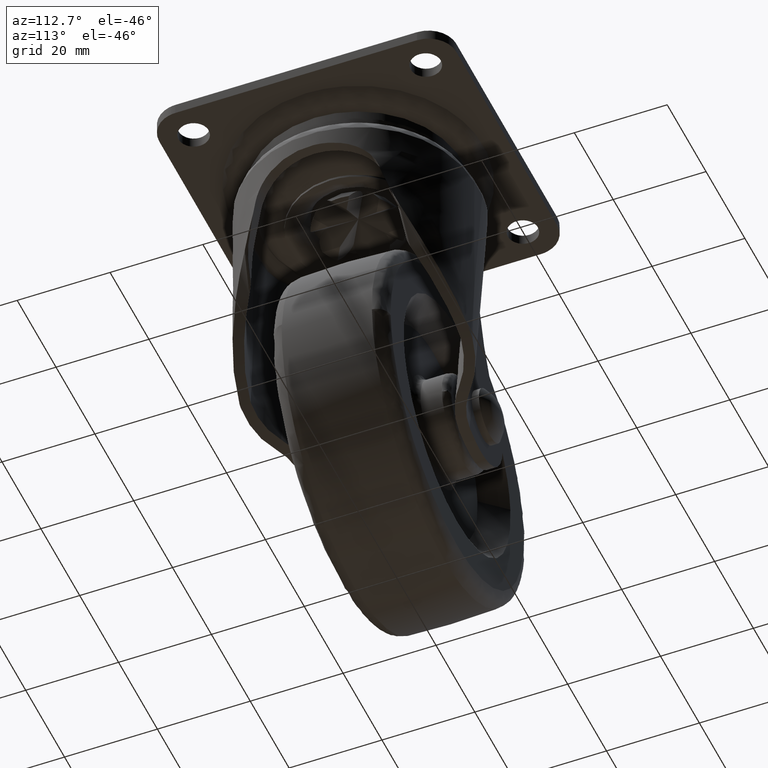
[diagram: clean part render]
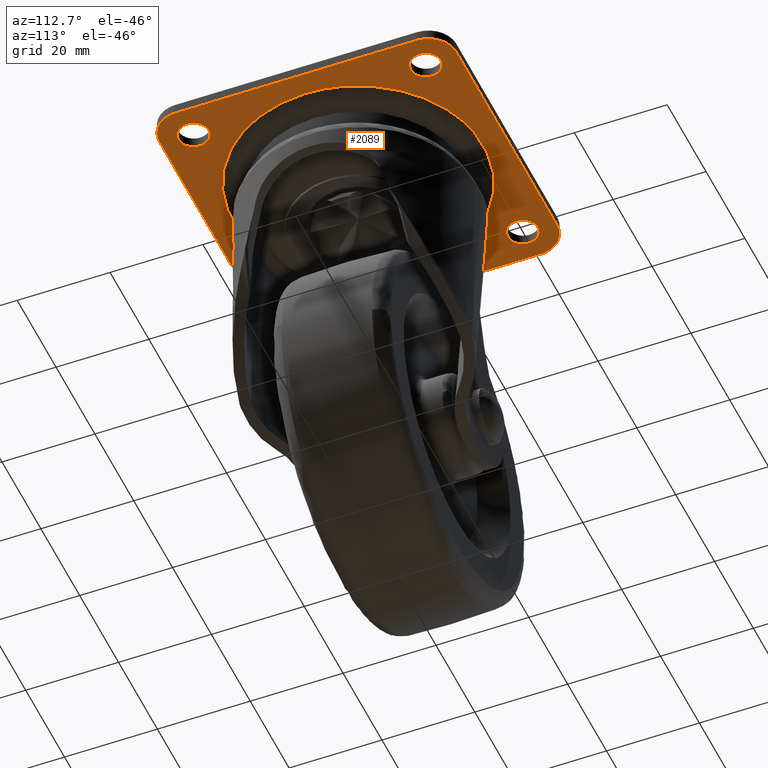
[diagram: same view with one face highlighted and labeled with its STEP entity id]
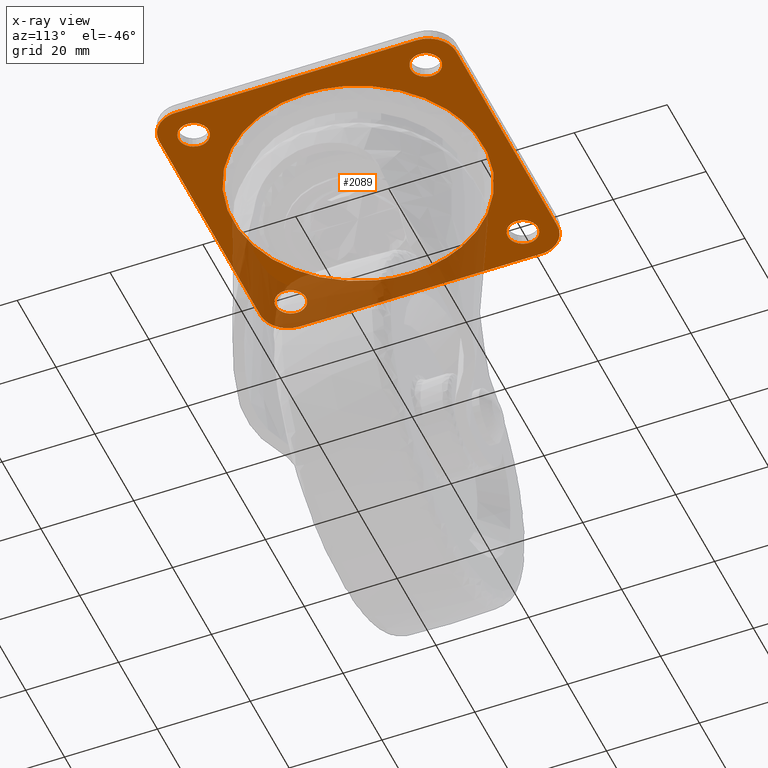
[diagram: x-ray of the same camera — body ghosted, the highlighted face saturated]
A machine part, auxiliary view. The second image highlights one B-rep face of the part: STEP entity #2089.
The next image is the same camera in x-ray: the body ghosted, the highlighted face saturated — about 28% of this face is hidden behind the body in this view.
In plain terms, the highlighted face is a freeform B-spline surface patch.
Its self-contained STEP definition (entity closure, byte-faithful):
#100=CARTESIAN_POINT('',(-24.801592246405111,28.243938094864550,-2.299999999999971));
#101=VERTEX_POINT('',#100);
#107=CARTESIAN_POINT('',(-21.750000000000000,25.0,-2.299999999999970));
#108=VERTEX_POINT('',#107);
#109=CARTESIAN_POINT('',(-21.750000000000000,25.0,-2.299999999999970));
#110=CARTESIAN_POINT('',(-21.750000000000000,28.057294717242190,-2.299999999999970));
#111=CARTESIAN_POINT('',(-24.801592246405107,28.243938094864546,-2.299999999999971));
#119=(BOUNDED_CURVE()B_SPLINE_CURVE(2,(#109,#110,#111),.UNSPECIFIED.,.F.,.U.)B_SPLINE_CURVE_WITH_KNOTS((3,3),(0.500000000000000,0.739332962230627),.UNSPECIFIED.)CURVE()GEOMETRIC_REPRESENTATION_ITEM()RATIONAL_B_SPLINE_CURVE((1.0,0.719603993296452,0.976072041648896))REPRESENTATION_ITEM(''));
#120=EDGE_CURVE('',#108,#101,#119,.T.);
#122=CARTESIAN_POINT('',(-25.383611262667021,21.772719039321959,-2.299999999999971));
#123=VERTEX_POINT('',#122);
#124=CARTESIAN_POINT('',(-25.383611262667021,21.772719039321952,-2.299999999999971));
#125=CARTESIAN_POINT('',(-25.192478388901616,21.750000000000000,-2.299999999999970));
#126=CARTESIAN_POINT('',(-25.0,21.750000000000000,-2.299999999999970));
#127=CARTESIAN_POINT('',(-21.750000000000004,21.750000000000004,-2.299999999999970));
#128=CARTESIAN_POINT('',(-21.750000000000000,25.0,-2.299999999999970));
#136=(BOUNDED_CURVE()B_SPLINE_CURVE(2,(#124,#125,#126,#127,#128),.UNSPECIFIED.,.F.,.U.)B_SPLINE_CURVE_WITH_KNOTS((3,2,3),(0.229562473512234,0.250000000000000,0.500000000000000),.UNSPECIFIED.)CURVE()GEOMETRIC_REPRESENTATION_ITEM()RATIONAL_B_SPLINE_CURVE((0.956026754181201,0.976055948329652,1.0,0.707106781186547,1.0))REPRESENTATION_ITEM(''));
#137=EDGE_CURVE('',#123,#108,#136,.T.);
#181=CARTESIAN_POINT('',(-28.250000000000000,25.0,-2.299999999999970));
#182=VERTEX_POINT('',#181);
#183=CARTESIAN_POINT('',(-28.250000000000000,25.0,-2.299999999999970));
#184=CARTESIAN_POINT('',(-28.249999999999996,22.113432790716729,-2.299999999999971));
#185=CARTESIAN_POINT('',(-25.383611262667028,21.772719039321959,-2.299999999999970));
#193=(BOUNDED_CURVE()B_SPLINE_CURVE(2,(#183,#184,#185),.UNSPECIFIED.,.F.,.U.)B_SPLINE_CURVE_WITH_KNOTS((3,3),(0.0,0.229562473512234),.UNSPECIFIED.)CURVE()GEOMETRIC_REPRESENTATION_ITEM()RATIONAL_B_SPLINE_CURVE((1.0,0.731050832856896,0.956026754181201))REPRESENTATION_ITEM(''));
#194=EDGE_CURVE('',#182,#123,#193,.T.);
#196=CARTESIAN_POINT('',(-24.801592246405114,28.243938094864550,-2.299999999999970));
#197=CARTESIAN_POINT('',(-24.900703519172673,28.250000000000004,-2.299999999999971));
#198=CARTESIAN_POINT('',(-25.0,28.250000000000000,-2.299999999999970));
#199=CARTESIAN_POINT('',(-28.250000000000004,28.250000000000004,-2.299999999999970));
#200=CARTESIAN_POINT('',(-28.250000000000000,25.0,-2.299999999999970));
#208=(BOUNDED_CURVE()B_SPLINE_CURVE(2,(#196,#197,#198,#199,#200),.UNSPECIFIED.,.F.,.U.)B_SPLINE_CURVE_WITH_KNOTS((3,2,3),(0.739332962230627,0.750000000000000,1.0),.UNSPECIFIED.)CURVE()GEOMETRIC_REPRESENTATION_ITEM()RATIONAL_B_SPLINE_CURVE((0.976072041648895,0.987502787890095,1.0,0.707106781186547,1.0))REPRESENTATION_ITEM(''));
#209=EDGE_CURVE('',#101,#182,#208,.T.);
#502=CARTESIAN_POINT('',(25.198407753594889,28.243938094864550,-2.299999999999971));
#503=VERTEX_POINT('',#502);
#509=CARTESIAN_POINT('',(28.250000000000000,25.0,-2.299999999999970));
#510=VERTEX_POINT('',#509);
#511=CARTESIAN_POINT('',(28.250000000000000,25.0,-2.299999999999970));
#512=CARTESIAN_POINT('',(28.249999999999996,28.057294717242190,-2.299999999999970));
#513=CARTESIAN_POINT('',(25.198407753594896,28.243938094864546,-2.299999999999971));
#521=(BOUNDED_CURVE()B_SPLINE_CURVE(2,(#511,#512,#513),.UNSPECIFIED.,.F.,.U.)B_SPLINE_CURVE_WITH_KNOTS((3,3),(0.500000000000000,0.739332962230627),.UNSPECIFIED.)CURVE()GEOMETRIC_REPRESENTATION_ITEM()RATIONAL_B_SPLINE_CURVE((1.0,0.719603993296452,0.976072041648896))REPRESENTATION_ITEM(''));
#522=EDGE_CURVE('',#510,#503,#521,.T.);
#524=CARTESIAN_POINT('',(24.616388737332969,21.772719039321959,-2.299999999999970));
#525=VERTEX_POINT('',#524);
#526=CARTESIAN_POINT('',(24.616388737332969,21.772719039321956,-2.299999999999969));
#527=CARTESIAN_POINT('',(24.807521611098384,21.750000000000007,-2.299999999999970));
#528=CARTESIAN_POINT('',(25.0,21.750000000000000,-2.299999999999970));
#529=CARTESIAN_POINT('',(28.250000000000004,21.750000000000004,-2.299999999999970));
#530=CARTESIAN_POINT('',(28.250000000000000,25.0,-2.299999999999970));
#538=(BOUNDED_CURVE()B_SPLINE_CURVE(2,(#526,#527,#528,#529,#530),.UNSPECIFIED.,.F.,.U.)B_SPLINE_CURVE_WITH_KNOTS((3,2,3),(0.229562473512233,0.250000000000000,0.500000000000000),.UNSPECIFIED.)CURVE()GEOMETRIC_REPRESENTATION_ITEM()RATIONAL_B_SPLINE_CURVE((0.956026754181200,0.976055948329651,1.0,0.707106781186547,1.0))REPRESENTATION_ITEM(''));
#539=EDGE_CURVE('',#525,#510,#538,.T.);
#583=CARTESIAN_POINT('',(21.750000000000000,25.0,-2.299999999999970));
#584=VERTEX_POINT('',#583);
#585=CARTESIAN_POINT('',(21.750000000000000,25.0,-2.299999999999970));
#586=CARTESIAN_POINT('',(21.750000000000007,22.113432790716722,-2.299999999999969));
#587=CARTESIAN_POINT('',(24.616388737332972,21.772719039321963,-2.299999999999970));
#595=(BOUNDED_CURVE()B_SPLINE_CURVE(2,(#585,#586,#587),.UNSPECIFIED.,.F.,.U.)B_SPLINE_CURVE_WITH_KNOTS((3,3),(0.0,0.229562473512233),.UNSPECIFIED.)CURVE()GEOMETRIC_REPRESENTATION_ITEM()RATIONAL_B_SPLINE_CURVE((1.0,0.731050832856896,0.956026754181200))REPRESENTATION_ITEM(''));
#596=EDGE_CURVE('',#584,#525,#595,.T.);
#598=CARTESIAN_POINT('',(25.198407753594896,28.243938094864546,-2.299999999999971));
#599=CARTESIAN_POINT('',(25.099296480827320,28.249999999999993,-2.299999999999970));
#600=CARTESIAN_POINT('',(25.0,28.250000000000000,-2.299999999999970));
#601=CARTESIAN_POINT('',(21.750000000000004,28.250000000000004,-2.299999999999970));
#602=CARTESIAN_POINT('',(21.750000000000000,25.0,-2.299999999999970));
#610=(BOUNDED_CURVE()B_SPLINE_CURVE(2,(#598,#599,#600,#601,#602),.UNSPECIFIED.,.F.,.U.)B_SPLINE_CURVE_WITH_KNOTS((3,2,3),(0.739332962230627,0.750000000000000,1.0),.UNSPECIFIED.)CURVE()GEOMETRIC_REPRESENTATION_ITEM()RATIONAL_B_SPLINE_CURVE((0.976072041648896,0.987502787890095,1.0,0.707106781186547,1.0))REPRESENTATION_ITEM(''));
#611=EDGE_CURVE('',#503,#584,#610,.T.);
#688=CARTESIAN_POINT('',(25.198407753594889,-21.756061905135450,-2.299999999999970));
#689=VERTEX_POINT('',#688);
#695=CARTESIAN_POINT('',(28.250000000000000,-25.0,-2.299999999999970));
#696=VERTEX_POINT('',#695);
#697=CARTESIAN_POINT('',(28.250000000000000,-25.0,-2.299999999999970));
#698=CARTESIAN_POINT('',(28.249999999999996,-21.942705282757821,-2.299999999999970));
#699=CARTESIAN_POINT('',(25.198407753594896,-21.756061905135454,-2.299999999999970));
#707=(BOUNDED_CURVE()B_SPLINE_CURVE(2,(#697,#698,#699),.UNSPECIFIED.,.F.,.U.)B_SPLINE_CURVE_WITH_KNOTS((3,3),(0.500000000000000,0.739332962230627),.UNSPECIFIED.)CURVE()GEOMETRIC_REPRESENTATION_ITEM()RATIONAL_B_SPLINE_CURVE((1.0,0.719603993296452,0.976072041648896))REPRESENTATION_ITEM(''));
#708=EDGE_CURVE('',#696,#689,#707,.T.);
#710=CARTESIAN_POINT('',(24.616388737332969,-28.227280960678041,-2.299999999999970));
#711=VERTEX_POINT('',#710);
#712=CARTESIAN_POINT('',(24.616388737332969,-28.227280960678044,-2.299999999999969));
#713=CARTESIAN_POINT('',(24.807521611098384,-28.250000000000004,-2.299999999999970));
#714=CARTESIAN_POINT('',(25.0,-28.250000000000000,-2.299999999999970));
#715=CARTESIAN_POINT('',(28.250000000000004,-28.250000000000004,-2.299999999999970));
#716=CARTESIAN_POINT('',(28.250000000000000,-25.0,-2.299999999999970));
#724=(BOUNDED_CURVE()B_SPLINE_CURVE(2,(#712,#713,#714,#715,#716),.UNSPECIFIED.,.F.,.U.)B_SPLINE_CURVE_WITH_KNOTS((3,2,3),(0.229562473512233,0.250000000000000,0.500000000000000),.UNSPECIFIED.)CURVE()GEOMETRIC_REPRESENTATION_ITEM()RATIONAL_B_SPLINE_CURVE((0.956026754181200,0.976055948329651,1.0,0.707106781186547,1.0))REPRESENTATION_ITEM(''));
#725=EDGE_CURVE('',#711,#696,#724,.T.);
#769=CARTESIAN_POINT('',(21.750000000000000,-25.0,-2.299999999999970));
#770=VERTEX_POINT('',#769);
#771=CARTESIAN_POINT('',(21.750000000000000,-25.0,-2.299999999999970));
#772=CARTESIAN_POINT('',(21.750000000000007,-27.886567209283271,-2.299999999999969));
#773=CARTESIAN_POINT('',(24.616388737332972,-28.227280960678051,-2.299999999999970));
#781=(BOUNDED_CURVE()B_SPLINE_CURVE(2,(#771,#772,#773),.UNSPECIFIED.,.F.,.U.)B_SPLINE_CURVE_WITH_KNOTS((3,3),(0.0,0.229562473512233),.UNSPECIFIED.)CURVE()GEOMETRIC_REPRESENTATION_ITEM()RATIONAL_B_SPLINE_CURVE((1.0,0.731050832856896,0.956026754181200))REPRESENTATION_ITEM(''));
#782=EDGE_CURVE('',#770,#711,#781,.T.);
#784=CARTESIAN_POINT('',(25.198407753594893,-21.756061905135457,-2.299999999999970));
#785=CARTESIAN_POINT('',(25.099296480827316,-21.750000000000000,-2.299999999999971));
#786=CARTESIAN_POINT('',(25.0,-21.750000000000000,-2.299999999999970));
#787=CARTESIAN_POINT('',(21.750000000000004,-21.750000000000004,-2.299999999999970));
#788=CARTESIAN_POINT('',(21.750000000000000,-25.0,-2.299999999999970));
#796=(BOUNDED_CURVE()B_SPLINE_CURVE(2,(#784,#785,#786,#787,#788),.UNSPECIFIED.,.F.,.U.)B_SPLINE_CURVE_WITH_KNOTS((3,2,3),(0.739332962230627,0.750000000000000,1.0),.UNSPECIFIED.)CURVE()GEOMETRIC_REPRESENTATION_ITEM()RATIONAL_B_SPLINE_CURVE((0.976072041648895,0.987502787890095,1.0,0.707106781186547,1.0))REPRESENTATION_ITEM(''));
#797=EDGE_CURVE('',#689,#770,#796,.T.);
#874=CARTESIAN_POINT('',(-24.801592246405111,-21.756061905135450,-2.299999999999971));
#875=VERTEX_POINT('',#874);
#881=CARTESIAN_POINT('',(-21.750000000000000,-25.0,-2.299999999999970));
#882=VERTEX_POINT('',#881);
#883=CARTESIAN_POINT('',(-21.750000000000000,-25.0,-2.299999999999970));
#884=CARTESIAN_POINT('',(-21.750000000000000,-21.942705282757821,-2.299999999999970));
#885=CARTESIAN_POINT('',(-24.801592246405107,-21.756061905135454,-2.299999999999971));
#893=(BOUNDED_CURVE()B_SPLINE_CURVE(2,(#883,#884,#885),.UNSPECIFIED.,.F.,.U.)B_SPLINE_CURVE_WITH_KNOTS((3,3),(0.500000000000000,0.739332962230627),.UNSPECIFIED.)CURVE()GEOMETRIC_REPRESENTATION_ITEM()RATIONAL_B_SPLINE_CURVE((1.0,0.719603993296452,0.976072041648896))REPRESENTATION_ITEM(''));
#894=EDGE_CURVE('',#882,#875,#893,.T.);
#896=CARTESIAN_POINT('',(-25.383611262667021,-28.227280960678041,-2.299999999999970));
#897=VERTEX_POINT('',#896);
#898=CARTESIAN_POINT('',(-25.383611262667028,-28.227280960678048,-2.299999999999970));
#899=CARTESIAN_POINT('',(-25.192478388901620,-28.250000000000007,-2.299999999999970));
#900=CARTESIAN_POINT('',(-25.0,-28.250000000000000,-2.299999999999970));
#901=CARTESIAN_POINT('',(-21.750000000000004,-28.250000000000004,-2.299999999999970));
#902=CARTESIAN_POINT('',(-21.750000000000000,-25.0,-2.299999999999970));
#910=(BOUNDED_CURVE()B_SPLINE_CURVE(2,(#898,#899,#900,#901,#902),.UNSPECIFIED.,.F.,.U.)B_SPLINE_CURVE_WITH_KNOTS((3,2,3),(0.229562473512234,0.250000000000000,0.500000000000000),.UNSPECIFIED.)CURVE()GEOMETRIC_REPRESENTATION_ITEM()RATIONAL_B_SPLINE_CURVE((0.956026754181201,0.976055948329652,1.0,0.707106781186547,1.0))REPRESENTATION_ITEM(''));
#911=EDGE_CURVE('',#897,#882,#910,.T.);
#955=CARTESIAN_POINT('',(-28.250000000000000,-25.0,-2.299999999999970));
#956=VERTEX_POINT('',#955);
#957=CARTESIAN_POINT('',(-28.250000000000000,-25.0,-2.299999999999970));
#958=CARTESIAN_POINT('',(-28.249999999999993,-27.886567209283278,-2.299999999999970));
#959=CARTESIAN_POINT('',(-25.383611262667024,-28.227280960678041,-2.299999999999970));
#967=(BOUNDED_CURVE()B_SPLINE_CURVE(2,(#957,#958,#959),.UNSPECIFIED.,.F.,.U.)B_SPLINE_CURVE_WITH_KNOTS((3,3),(0.0,0.229562473512234),.UNSPECIFIED.)CURVE()GEOMETRIC_REPRESENTATION_ITEM()RATIONAL_B_SPLINE_CURVE((1.0,0.731050832856896,0.956026754181201))REPRESENTATION_ITEM(''));
#968=EDGE_CURVE('',#956,#897,#967,.T.);
#970=CARTESIAN_POINT('',(-24.801592246405111,-21.756061905135454,-2.299999999999971));
#971=CARTESIAN_POINT('',(-24.900703519172684,-21.750000000000007,-2.299999999999971));
#972=CARTESIAN_POINT('',(-25.0,-21.750000000000000,-2.299999999999970));
#973=CARTESIAN_POINT('',(-28.250000000000004,-21.750000000000004,-2.299999999999970));
#974=CARTESIAN_POINT('',(-28.250000000000000,-25.0,-2.299999999999970));
#982=(BOUNDED_CURVE()B_SPLINE_CURVE(2,(#970,#971,#972,#973,#974),.UNSPECIFIED.,.F.,.U.)B_SPLINE_CURVE_WITH_KNOTS((3,2,3),(0.739332962230627,0.750000000000000,1.0),.UNSPECIFIED.)CURVE()GEOMETRIC_REPRESENTATION_ITEM()RATIONAL_B_SPLINE_CURVE((0.976072041648895,0.987502787890095,1.0,0.707106781186547,1.0))REPRESENTATION_ITEM(''));
#983=EDGE_CURVE('',#875,#956,#982,.T.);
#1622=CARTESIAN_POINT('',(12.106346834425370,24.133718452008630,-2.300000000131097));
#1623=VERTEX_POINT('',#1622);
#1637=CARTESIAN_POINT('',(27.0,0.0,-2.300000000000000));
#1638=VERTEX_POINT('',#1637);
#1639=CARTESIAN_POINT('',(12.106346834425377,24.133718452008630,-2.300000000131098));
#1640=CARTESIAN_POINT('',(27.000000000000004,16.662522862682831,-2.300000000000000));
#1641=CARTESIAN_POINT('',(27.0,0.0,-2.300000000000000));
#1649=(BOUNDED_CURVE()B_SPLINE_CURVE(2,(#1639,#1640,#1641),.UNSPECIFIED.,.F.,.U.)B_SPLINE_CURVE_WITH_KNOTS((3,3),(0.326230937884599,0.500000000000000),.UNSPECIFIED.)CURVE()GEOMETRIC_REPRESENTATION_ITEM()RATIONAL_B_SPLINE_CURVE((0.875845342762430,0.796416880267302,1.0))REPRESENTATION_ITEM(''));
#1650=EDGE_CURVE('',#1623,#1638,#1649,.T.);
#1652=CARTESIAN_POINT('',(-27.0,0.0,-2.300000000000000));
#1653=VERTEX_POINT('',#1652);
#1654=CARTESIAN_POINT('',(27.0,0.0,-2.300000000000000));
#1655=CARTESIAN_POINT('',(27.000000000000011,-27.000000000000011,-2.299999999999999));
#1656=CARTESIAN_POINT('',(0.0,-27.0,-2.300000000000000));
#1657=CARTESIAN_POINT('',(-27.000000000000011,-27.000000000000011,-2.299999999999999));
#1658=CARTESIAN_POINT('',(-27.0,0.0,-2.300000000000000));
#1666=(BOUNDED_CURVE()B_SPLINE_CURVE(2,(#1654,#1655,#1656,#1657,#1658),.UNSPECIFIED.,.F.,.U.)B_SPLINE_CURVE_WITH_KNOTS((3,2,3),(0.500000000000000,0.750000000000000,1.0),.UNSPECIFIED.)CURVE()GEOMETRIC_REPRESENTATION_ITEM()RATIONAL_B_SPLINE_CURVE((1.0,0.707106781186548,1.0,0.707106781186548,1.0))REPRESENTATION_ITEM(''));
#1667=EDGE_CURVE('',#1638,#1653,#1666,.T.);
#1669=CARTESIAN_POINT('',(-24.133718452008630,12.106346834425370,-2.300000000131098));
#1670=VERTEX_POINT('',#1669);
#1671=CARTESIAN_POINT('',(-27.0,0.0,-2.300000000000000));
#1672=CARTESIAN_POINT('',(-26.999999999999993,6.392481799216254,-2.300000000000000));
#1673=CARTESIAN_POINT('',(-24.133718452008630,12.106346834425377,-2.300000000131098));
#1681=(BOUNDED_CURVE()B_SPLINE_CURVE(2,(#1671,#1672,#1673),.UNSPECIFIED.,.F.,.U.)B_SPLINE_CURVE_WITH_KNOTS((3,3),(0.0,0.076230937884599),.UNSPECIFIED.)CURVE()GEOMETRIC_REPRESENTATION_ITEM()RATIONAL_B_SPLINE_CURVE((1.0,0.910689900919246,0.875845342762430))REPRESENTATION_ITEM(''));
#1682=EDGE_CURVE('',#1653,#1670,#1681,.T.);
#1765=CARTESIAN_POINT('',(-24.133718452008630,12.106346834425377,-2.300000000131098));
#1766=CARTESIAN_POINT('',(-16.662522862682831,27.000000000000004,-2.300000000000000));
#1767=CARTESIAN_POINT('',(0.0,27.0,-2.300000000000000));
#1768=CARTESIAN_POINT('',(6.392481799216270,27.0,-2.300000000000000));
#1769=CARTESIAN_POINT('',(12.106346834425370,24.133718452008623,-2.300000000131097));
#1777=(BOUNDED_CURVE()B_SPLINE_CURVE(2,(#1765,#1766,#1767,#1768,#1769),.UNSPECIFIED.,.F.,.U.)B_SPLINE_CURVE_WITH_KNOTS((3,2,3),(0.076230937884599,0.250000000000000,0.326230937884599),.UNSPECIFIED.)CURVE()GEOMETRIC_REPRESENTATION_ITEM()RATIONAL_B_SPLINE_CURVE((0.875845342762430,0.796416880267302,1.0,0.910689900919246,0.875845342762430))REPRESENTATION_ITEM(''));
#1778=EDGE_CURVE('',#1670,#1623,#1777,.T.);
#1964=CARTESIAN_POINT('',(-35.196799875955577,35.196799875955577,-2.300000000000000));
#1965=CARTESIAN_POINT('',(35.196801592569351,35.196799875955577,-2.300000000000000));
#1966=CARTESIAN_POINT('',(-35.196799875955577,-35.196801592569351,-2.300000000000000));
#1967=CARTESIAN_POINT('',(35.196801592569351,-35.196801592569351,-2.300000000000000));
#1968=B_SPLINE_SURFACE_WITH_KNOTS('',1,1,((#1964,#1966),(#1965,#1967)),.UNSPECIFIED.,.F.,.F.,.U.,(2,2),(2,2),(0.0,70.393601468524935),(0.0,70.393601468524935),.UNSPECIFIED.);
#1969=CARTESIAN_POINT('',(32.0,26.0,-2.299999999999970));
#1970=VERTEX_POINT('',#1969);
#1971=CARTESIAN_POINT('',(26.0,32.0,-2.299999999999970));
#1972=VERTEX_POINT('',#1971);
#1973=CARTESIAN_POINT('',(32.0,26.0,-2.299999999999970));
#1974=CARTESIAN_POINT('',(31.999999999999996,31.999999999999996,-2.299999999999970));
#1975=CARTESIAN_POINT('',(26.0,32.0,-2.299999999999970));
#1983=(BOUNDED_CURVE()B_SPLINE_CURVE(2,(#1973,#1974,#1975),.UNSPECIFIED.,.F.,.U.)CURVE()GEOMETRIC_REPRESENTATION_ITEM()QUASI_UNIFORM_CURVE()RATIONAL_B_SPLINE_CURVE((1.0,0.707106781186548,1.0))REPRESENTATION_ITEM(''));
#1984=EDGE_CURVE('',#1970,#1972,#1983,.T.);
#1985=ORIENTED_EDGE('',*,*,#1984,.F.);
#1986=CARTESIAN_POINT('',(32.0,-26.0,-2.299999999999970));
#1987=VERTEX_POINT('',#1986);
#1988=CARTESIAN_POINT('',(32.0,-26.0,-2.299999999999970));
#1989=CARTESIAN_POINT('',(32.0,26.0,-2.299999999999970));
#1990=QUASI_UNIFORM_CURVE('',1,(#1988,#1989),.UNSPECIFIED.,.F.,.U.);
#1991=EDGE_CURVE('',#1987,#1970,#1990,.T.);
#1992=ORIENTED_EDGE('',*,*,#1991,.F.);
#1993=CARTESIAN_POINT('',(26.0,-32.0,-2.299999999999970));
#1994=VERTEX_POINT('',#1993);
#1995=CARTESIAN_POINT('',(26.0,-32.0,-2.299999999999970));
#1996=CARTESIAN_POINT('',(31.999999999999996,-31.999999999999996,-2.299999999999970));
#1997=CARTESIAN_POINT('',(32.0,-26.0,-2.299999999999970));
#2005=(BOUNDED_CURVE()B_SPLINE_CURVE(2,(#1995,#1996,#1997),.UNSPECIFIED.,.F.,.U.)CURVE()GEOMETRIC_REPRESENTATION_ITEM()QUASI_UNIFORM_CURVE()RATIONAL_B_SPLINE_CURVE((1.0,0.707106781186548,1.0))REPRESENTATION_ITEM(''));
#2006=EDGE_CURVE('',#1994,#1987,#2005,.T.);
#2007=ORIENTED_EDGE('',*,*,#2006,.F.);
#2008=CARTESIAN_POINT('',(-26.0,-32.0,-2.299999999999970));
#2009=VERTEX_POINT('',#2008);
#2010=CARTESIAN_POINT('',(-26.0,-32.0,-2.299999999999970));
#2011=CARTESIAN_POINT('',(26.0,-32.0,-2.299999999999970));
#2012=QUASI_UNIFORM_CURVE('',1,(#2010,#2011),.UNSPECIFIED.,.F.,.U.);
#2013=EDGE_CURVE('',#2009,#1994,#2012,.T.);
#2014=ORIENTED_EDGE('',*,*,#2013,.F.);
#2015=CARTESIAN_POINT('',(-32.0,-26.0,-2.299999999999970));
#2016=VERTEX_POINT('',#2015);
#2017=CARTESIAN_POINT('',(-32.0,-26.0,-2.299999999999970));
#2018=CARTESIAN_POINT('',(-31.999999999999996,-31.999999999999996,-2.299999999999970));
#2019=CARTESIAN_POINT('',(-26.0,-32.0,-2.299999999999970));
#2027=(BOUNDED_CURVE()B_SPLINE_CURVE(2,(#2017,#2018,#2019),.UNSPECIFIED.,.F.,.U.)CURVE()GEOMETRIC_REPRESENTATION_ITEM()QUASI_UNIFORM_CURVE()RATIONAL_B_SPLINE_CURVE((1.0,0.707106781186548,1.0))REPRESENTATION_ITEM(''));
#2028=EDGE_CURVE('',#2016,#2009,#2027,.T.);
#2029=ORIENTED_EDGE('',*,*,#2028,.F.);
#2030=CARTESIAN_POINT('',(-32.0,26.0,-2.299999999999970));
#2031=VERTEX_POINT('',#2030);
#2032=CARTESIAN_POINT('',(-32.0,26.0,-2.299999999999970));
#2033=CARTESIAN_POINT('',(-32.0,-26.0,-2.299999999999970));
#2034=QUASI_UNIFORM_CURVE('',1,(#2032,#2033),.UNSPECIFIED.,.F.,.U.);
#2035=EDGE_CURVE('',#2031,#2016,#2034,.T.);
#2036=ORIENTED_EDGE('',*,*,#2035,.F.);
#2037=CARTESIAN_POINT('',(-26.0,32.0,-2.299999999999970));
#2038=VERTEX_POINT('',#2037);
#2039=CARTESIAN_POINT('',(-26.0,32.0,-2.299999999999970));
#2040=CARTESIAN_POINT('',(-31.999999999999996,31.999999999999996,-2.299999999999970));
#2041=CARTESIAN_POINT('',(-32.0,26.0,-2.299999999999970));
#2049=(BOUNDED_CURVE()B_SPLINE_CURVE(2,(#2039,#2040,#2041),.UNSPECIFIED.,.F.,.U.)CURVE()GEOMETRIC_REPRESENTATION_ITEM()QUASI_UNIFORM_CURVE()RATIONAL_B_SPLINE_CURVE((1.0,0.707106781186548,1.0))REPRESENTATION_ITEM(''));
#2050=EDGE_CURVE('',#2038,#2031,#2049,.T.);
#2051=ORIENTED_EDGE('',*,*,#2050,.F.);
#2052=CARTESIAN_POINT('',(26.0,32.0,-2.299999999999970));
#2053=CARTESIAN_POINT('',(-26.0,32.0,-2.299999999999970));
#2054=QUASI_UNIFORM_CURVE('',1,(#2052,#2053),.UNSPECIFIED.,.F.,.U.);
#2055=EDGE_CURVE('',#1972,#2038,#2054,.T.);
#2056=ORIENTED_EDGE('',*,*,#2055,.F.);
#2057=EDGE_LOOP('',(#1985,#1992,#2007,#2014,#2029,#2036,#2051,#2056));
#2058=FACE_OUTER_BOUND('',#2057,.T.);
#2059=ORIENTED_EDGE('',*,*,#1667,.F.);
#2060=ORIENTED_EDGE('',*,*,#1650,.F.);
#2061=ORIENTED_EDGE('',*,*,#1778,.F.);
#2062=ORIENTED_EDGE('',*,*,#1682,.F.);
#2063=EDGE_LOOP('',(#2059,#2060,#2061,#2062));
#2064=FACE_BOUND('',#2063,.T.);
#2065=ORIENTED_EDGE('',*,*,#894,.T.);
#2066=ORIENTED_EDGE('',*,*,#983,.T.);
#2067=ORIENTED_EDGE('',*,*,#968,.T.);
#2068=ORIENTED_EDGE('',*,*,#911,.T.);
#2069=EDGE_LOOP('',(#2065,#2066,#2067,#2068));
#2070=FACE_BOUND('',#2069,.T.);
#2071=ORIENTED_EDGE('',*,*,#708,.T.);
#2072=ORIENTED_EDGE('',*,*,#797,.T.);
#2073=ORIENTED_EDGE('',*,*,#782,.T.);
#2074=ORIENTED_EDGE('',*,*,#725,.T.);
#2075=EDGE_LOOP('',(#2071,#2072,#2073,#2074));
#2076=FACE_BOUND('',#2075,.T.);
#2077=ORIENTED_EDGE('',*,*,#522,.T.);
#2078=ORIENTED_EDGE('',*,*,#611,.T.);
#2079=ORIENTED_EDGE('',*,*,#596,.T.);
#2080=ORIENTED_EDGE('',*,*,#539,.T.);
#2081=EDGE_LOOP('',(#2077,#2078,#2079,#2080));
#2082=FACE_BOUND('',#2081,.T.);
#2083=ORIENTED_EDGE('',*,*,#120,.T.);
#2084=ORIENTED_EDGE('',*,*,#209,.T.);
#2085=ORIENTED_EDGE('',*,*,#194,.T.);
#2086=ORIENTED_EDGE('',*,*,#137,.T.);
#2087=EDGE_LOOP('',(#2083,#2084,#2085,#2086));
#2088=FACE_BOUND('',#2087,.T.);
#2089=ADVANCED_FACE('',(#2058,#2064,#2070,#2076,#2082,#2088),#1968,.T.);